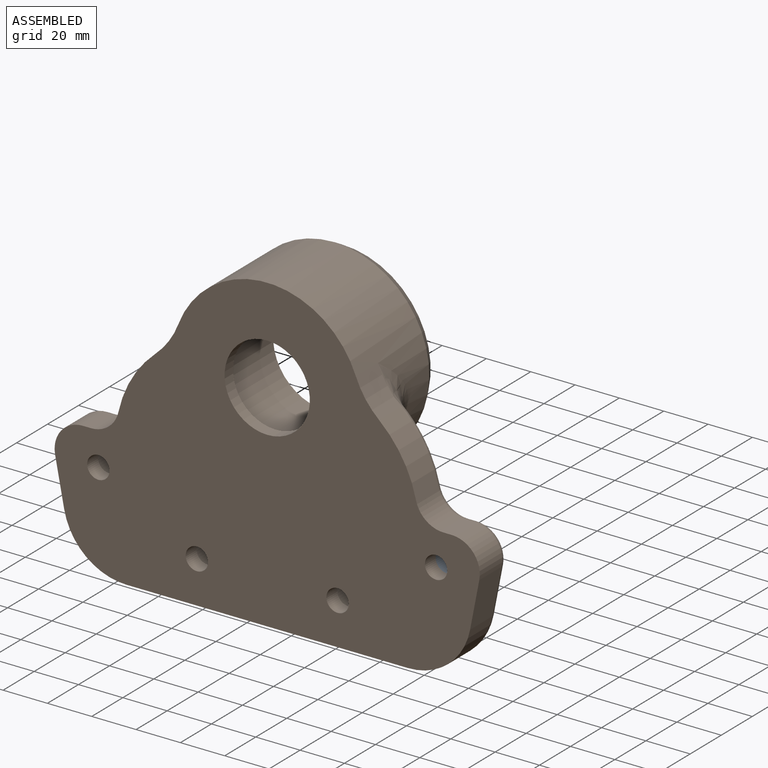
[diagram: assembled view]
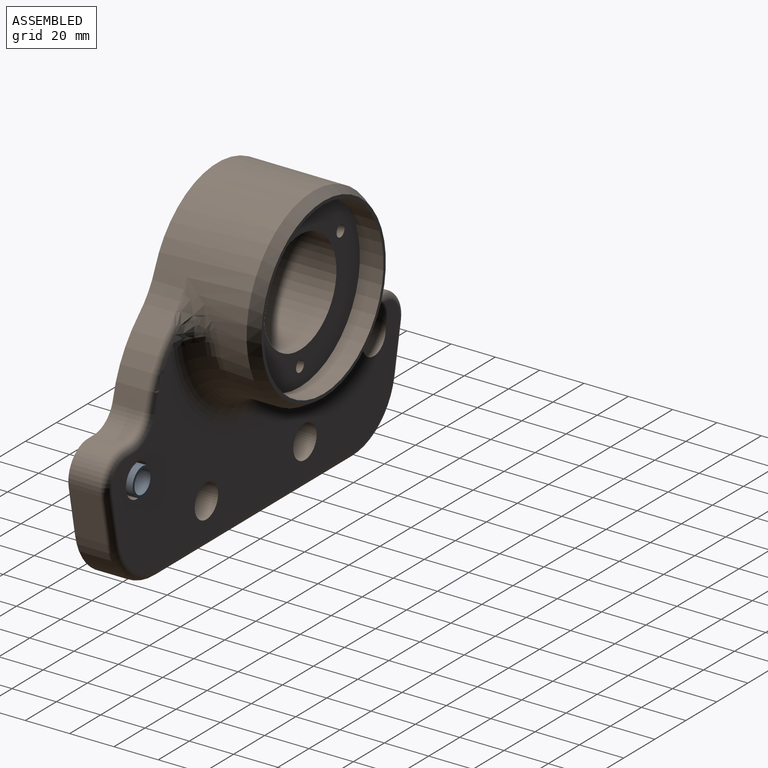
[diagram: assembled view, second angle]
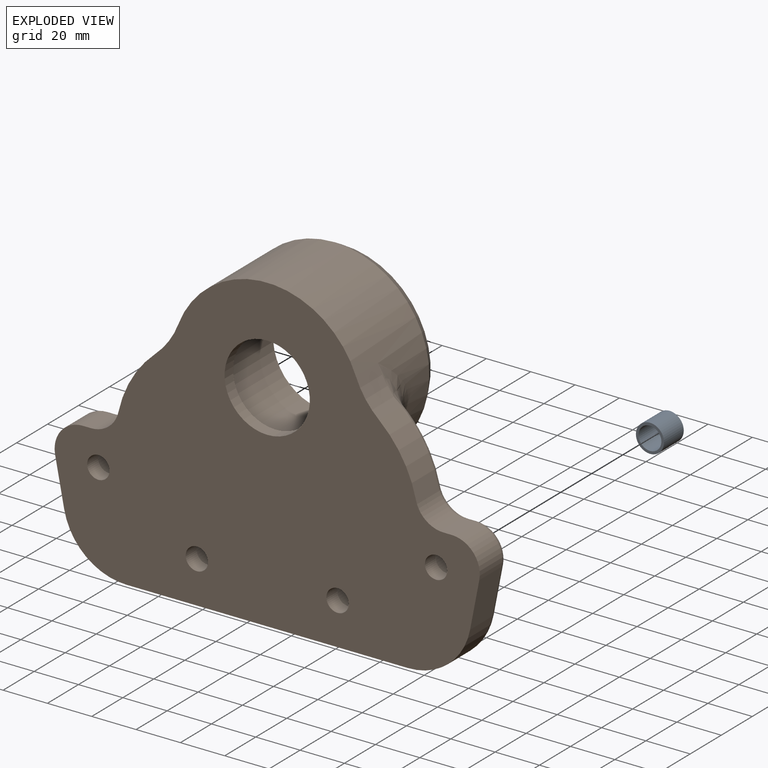
[diagram: exploded view]
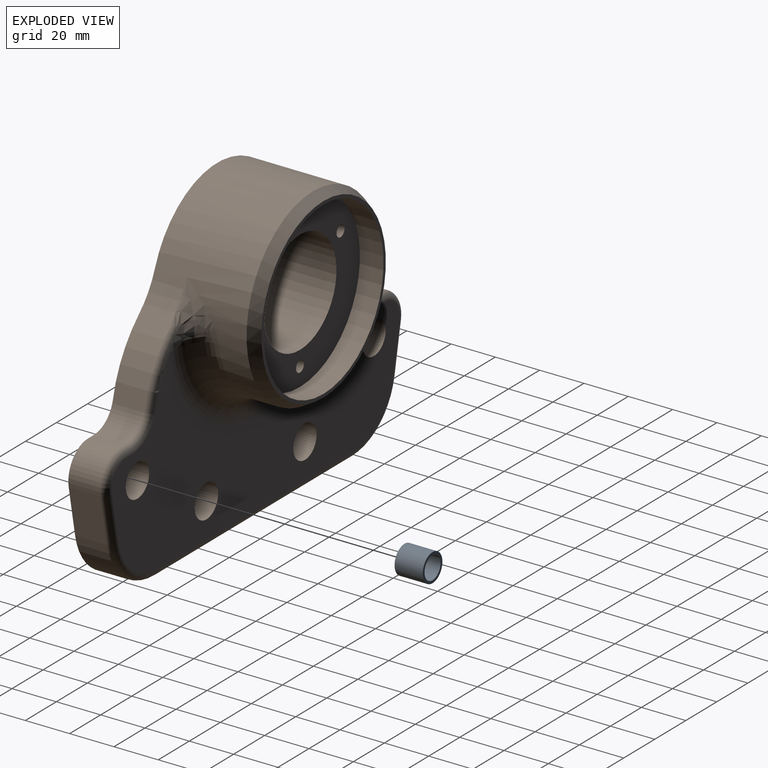
[diagram: exploded view, second angle]
ASSEMBLY  parts=2 mates=2
PART A: 4 faces, bbox 12.7x12.7x12.7 mm
  f0: cylinder r=5.16mm len=12.7mm, axis (0,0,-1), area 411.7mm2, adj f2,f3
  f1: cylinder r=6.35mm len=12.7mm, axis (0,0,-1), area 506.7mm2, adj f2,f3
  f2: plane 12.7x12.7mm, normal (0,0,1), area 43.1mm2, adj f0,f1
  f3: plane 12.7x12.7mm, normal (0,0,-1), area 43.1mm2, adj f0,f1
PART B: 63 faces, bbox 193.9x48x142.6 mm
  f0: cylinder r=2.55mm len=25.4mm, axis (0,1,0), area 407.4mm2, adj f1,f58
  f1: cone r=2.55mm half-angle=59deg, axis (0,1,0), area 23.9mm2, adj f0
  f2: cylinder r=2.55mm len=25.4mm, axis (0,1,0), area 407.4mm2, adj f3,f58
  f3: cone r=2.55mm half-angle=59deg, axis (0,1,0), area 23.9mm2, adj f2
  f4: cylinder r=2.55mm len=25.4mm, axis (0,1,0), area 407.4mm2, adj f5,f58
  f5: cone r=2.55mm half-angle=59deg, axis (0,1,0), area 23.9mm2, adj f4
  f6: cylinder r=7.49mm len=14.99mm, axis (0,1,0), area 492.7mm2, adj f22,f62
  f7: cylinder r=5.04mm len=10.08mm, axis (0,1,0), area 219.7mm2, adj f20,f62
  f8: cylinder r=7.49mm len=14.99mm, axis (0,1,0), area 492.7mm2, adj f22,f61
  f9: cylinder r=5.04mm len=10.08mm, axis (0,1,0), area 219.7mm2, adj f20,f61
  f10: cylinder r=7.49mm len=14.99mm, axis (0,1,0), area 492.7mm2, adj f22,f60
  f11: cylinder r=5.04mm len=10.08mm, axis (0,1,0), area 219.7mm2, adj f20,f60
  f12: cylinder r=7.49mm len=14.99mm, axis (0,1,0), area 492.7mm2, adj f22,f59
  f13: cylinder r=5.04mm len=10.08mm, axis (0,1,0), area 219.7mm2, adj f20,f59
  f14: cylinder r=38.58mm len=77.17mm, axis (0,1,0), area 2580mm2, adj f21,f58
  f15: cone r=40.12mm half-angle=30deg, axis (0,-1,0), area 1429.8mm2, adj f18,f21
  f16: torus R=55.56mm, axis (0,-1,0), area 2669.7mm2, adj f18,f22,f55,f56
  f17: cylinder r=19.24mm len=38.48mm, axis (0,1,0), area 655.6mm2, adj f20,f31
  f18: cylinder r=42.86mm len=85.73mm, axis (0,-1,0), area 6919.6mm2, adj f15,f16,f20,f23,f38,f54,f55,f56
  f19: cylinder r=23.49mm len=46.99mm, axis (0,1,0), area 4715.2mm2, adj f31,f58
  f20: plane 191.85x140.21mm, normal (0,-1,0), area 17005.2mm2, adj f7,f9,f11,f13,f17,f18,f23,f24
  f21: plane 80.24x80.24mm, normal (0,1,0), area 380.2mm2, adj f14,f15
  f22: plane 185.5x85.24mm, normal (0,1,0), area 8789.5mm2, adj f6,f8,f10,f12,f16,f40,f41,f42
  f23: cylinder r=38.1mm len=15.03mm, axis (0,-1,0), area 263.1mm2, adj f18,f20,f24,f39
  f24: cylinder r=52.39mm len=28.11mm, axis (0,-1,0), area 472.3mm2, adj f20,f23,f25,f40
  f25: cylinder r=12.7mm len=14.22mm, axis (0,-1,0), area 244.5mm2, adj f20,f24,f26,f41
  f26: plane 14.22x3.71mm, normal (0,0,1), area 52.7mm2, adj f20,f25,f27,f42
  f27: cylinder r=12.7mm len=15.12mm, axis (0,-1,0), area 318.4mm2, adj f20,f26,f28,f43
  f28: plane 21.32x14.22mm, normal (0.98,0,-0.19), area 308.9mm2, adj f20,f27,f29,f44
  f29: cylinder r=28.57mm len=28.05mm, axis (0,-1,0), area 560.4mm2, adj f20,f28,f30,f45
  f30: plane 127x14.22mm, normal (0,0,-1), area 1806.4mm2, adj f20,f29,f32,f46
  f31: plane 46.99x46.99mm, normal (0,1,0), area 571.2mm2, adj f17,f19
  f32: cylinder r=28.57mm len=28.05mm, axis (0,-1,0), area 560.4mm2, adj f20,f30,f33,f47
  f33: plane 21.32x14.22mm, normal (-0.98,0,-0.19), area 308.9mm2, adj f20,f32,f34,f48
  f34: cylinder r=12.7mm len=15.12mm, axis (0,-1,0), area 318.4mm2, adj f20,f33,f35,f49
  f35: plane 14.22x3.71mm, normal (0,0,1), area 52.7mm2, adj f20,f34,f36,f50
  f36: cylinder r=12.7mm len=14.22mm, axis (0,-1,0), area 244.5mm2, adj f20,f35,f37,f51
  f37: cylinder r=52.39mm len=28.11mm, axis (0,-1,0), area 472.3mm2, adj f20,f36,f38,f52
  f38: cylinder r=38.1mm len=15.03mm, axis (0,-1,0), area 263.1mm2, adj f18,f20,f37,f53
  f39: torus R=41.27mm, axis (0,-1,0), area 25.3mm2, adj f23,f40,f57
  f40: torus R=49.21mm, axis (0,-1,0), area 151.1mm2, adj f22,f24,f39,f41,f56
  f41: torus R=15.88mm, axis (0,-1,0), area 93.5mm2, adj f22,f25,f40,f42
  f42: cylinder r=3.17mm len=3.71mm, axis (1,0,0), area 18.5mm2, adj f22,f26,f41,f43
  f43: torus R=9.53mm, axis (0,-1,0), area 101.5mm2, adj f22,f27,f42,f44
  f44: cylinder r=3.17mm len=21.92mm, axis (-0.19,0,-0.98), area 108.3mm2, adj f22,f28,f43,f45
  f45: torus R=25.4mm, axis (0,-1,0), area 188.6mm2, adj f22,f29,f44,f46
  f46: cylinder r=3.17mm len=127mm, axis (-1,0,0), area 633.4mm2, adj f22,f30,f45,f47
  f47: torus R=25.4mm, axis (0,-1,0), area 188.6mm2, adj f22,f32,f46,f48
  f48: cylinder r=3.17mm len=21.92mm, axis (-0.19,0,0.98), area 108.3mm2, adj f22,f33,f47,f49
  f49: torus R=9.53mm, axis (0,-1,0), area 101.5mm2, adj f22,f34,f48,f50
  f50: cylinder r=3.17mm len=3.71mm, axis (1,0,0), area 18.5mm2, adj f22,f35,f49,f51
  f51: torus R=15.88mm, axis (0,-1,0), area 93.5mm2, adj f22,f36,f50,f52
  f52: torus R=49.21mm, axis (0,-1,0), area 151.1mm2, adj f22,f37,f51,f53,f55
  f53: torus R=41.27mm, axis (0,-1,0), area 25.3mm2, adj f38,f52,f54
  f54: bspline ~15.85x11.99mm, area 67.8mm2, adj f18,f53,f55
  f55: bspline ~13.48x13.35mm, area 154.7mm2, adj f16,f18,f52,f54
  f56: bspline ~13.48x13.35mm, area 154.7mm2, adj f16,f18,f40,f57
  f57: bspline ~15.85x11.99mm, area 67.9mm2, adj f18,f39,f56
  f58: plane 77.17x77.17mm, normal (0,1,0), area 2881mm2, adj f0,f2,f4,f14,f19
  f59: plane 14.99x14.99mm, normal (0,1,0), area 96.5mm2, adj f12,f13
  f60: plane 14.99x14.99mm, normal (0,1,0), area 96.5mm2, adj f10,f11
  f61: plane 14.99x14.99mm, normal (0,1,0), area 96.5mm2, adj f8,f9
  f62: plane 14.99x14.99mm, normal (0,1,0), area 96.5mm2, adj f6,f7
PLACE A rot(axis=(-1,0,0),90deg) t=(8.66,2.22,60.3)mm
PLACE B t=(-67.54,-4.72,15.85)mm
MATE planar A.f1 <-> B.f12  axis (0,-1,0) through (8.66,2.22,60.3)mm
MATE cylindrical A.f1 <-> B.f12  axis (0,-1,0) through (8.66,8.57,60.3)mm
